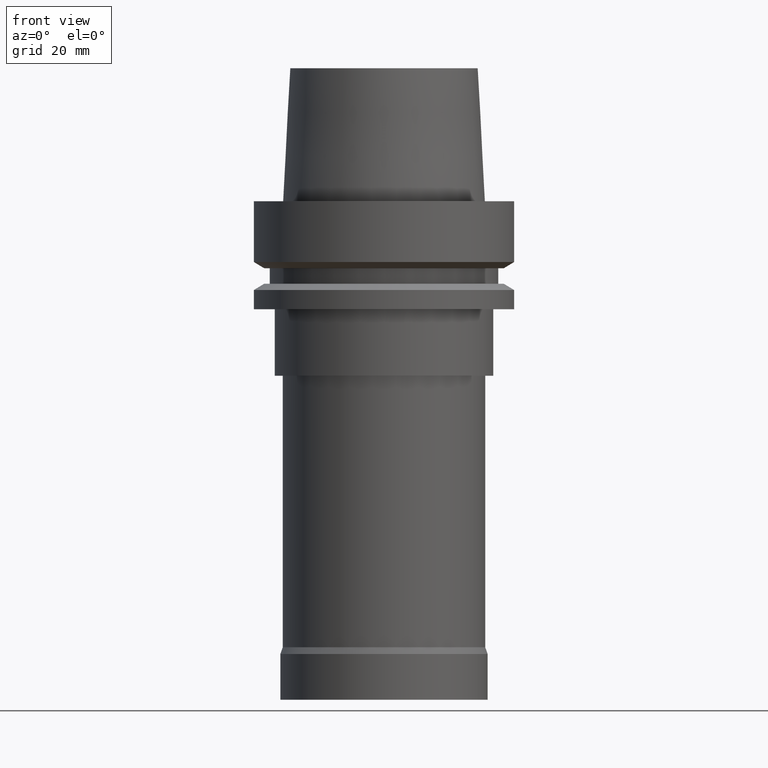
[diagram: clean part render]
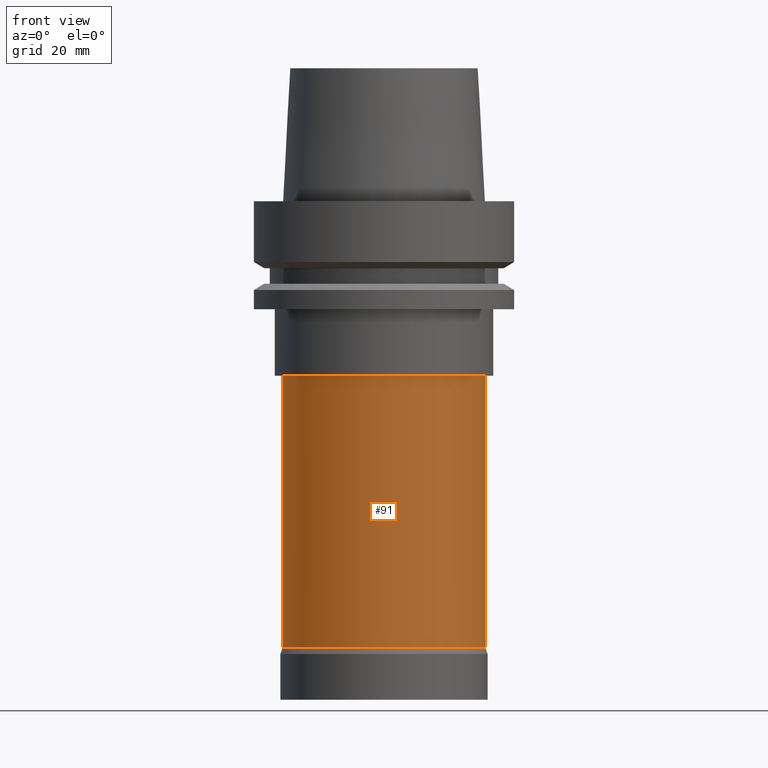
[diagram: same view with one face highlighted and labeled with its STEP entity id]
A machine part, front view. The second image highlights one B-rep face of the part: STEP entity #91.
In plain terms, the highlighted cylindrical surface (bore or boss wall) has radius 24.4 mm, axis along (-0, -0, 1).
Its self-contained STEP definition (entity closure, byte-faithful):
#91=ADVANCED_FACE('',(#139,#140),#141,.T.);
#139=FACE_BOUND('',#188,.T.);
#140=FACE_BOUND('',#189,.T.);
#141=CYLINDRICAL_SURFACE('',#190,24.4);
#188=EDGE_LOOP('',(#269));
#189=EDGE_LOOP('',(#270));
#190=AXIS2_PLACEMENT_3D('',#271,#272,#273);
#269=ORIENTED_EDGE('',*,*,#276,.F.);
#270=ORIENTED_EDGE('',*,*,#289,.T.);
#271=CARTESIAN_POINT('',(4.5726348931619E-015,9.14526978632381E-015,-74.676794915));
#272=DIRECTION('',(-6.12323399573677E-017,-1.22464679914735E-016,1.0));
#273=DIRECTION('',(-1.23259516440783E-032,1.0,1.22464679914735E-016));
#276=EDGE_CURVE('',#294,#294,#295,.T.);
#289=EDGE_CURVE('',#320,#320,#321,.T.);
#294=VERTEX_POINT('',#326);
#295=CIRCLE('',#327,24.4);
#320=VERTEX_POINT('',#352);
#321=CIRCLE('',#353,24.4);
#326=CARTESIAN_POINT('',(6.57351150811437E-015,24.4,-107.35358983));
#327=AXIS2_PLACEMENT_3D('',#360,#361,#362);
#352=CARTESIAN_POINT('',(2.57175827820944E-015,24.4,-42.0));
#353=AXIS2_PLACEMENT_3D('',#399,#400,#401);
#360=CARTESIAN_POINT('',(6.57351150811437E-015,1.31470230162287E-014,-107.35358983));
#361=DIRECTION('',(6.12323399573677E-017,1.22464679914735E-016,-1.0));
#362=DIRECTION('',(-1.23259516440783E-032,1.0,1.22464679914735E-016));
#399=CARTESIAN_POINT('',(2.57175827820944E-015,5.14351655641888E-015,-42.0));
#400=DIRECTION('',(6.12323399573677E-017,1.22464679914735E-016,-1.0));
#401=DIRECTION('',(-1.23259516440783E-032,1.0,1.22464679914735E-016));